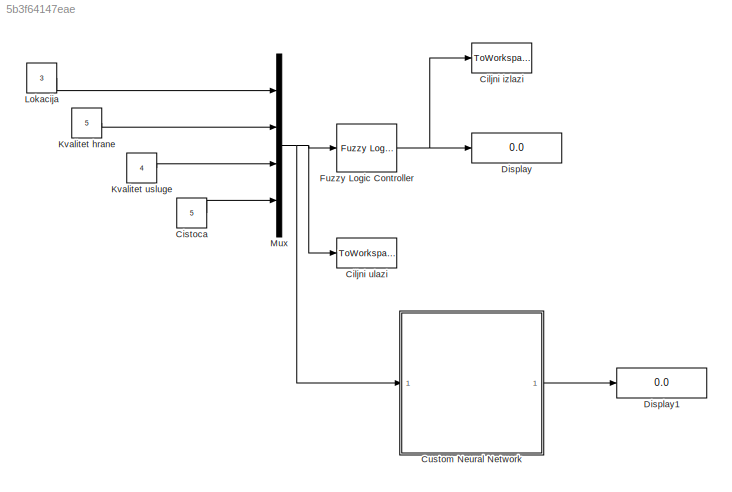
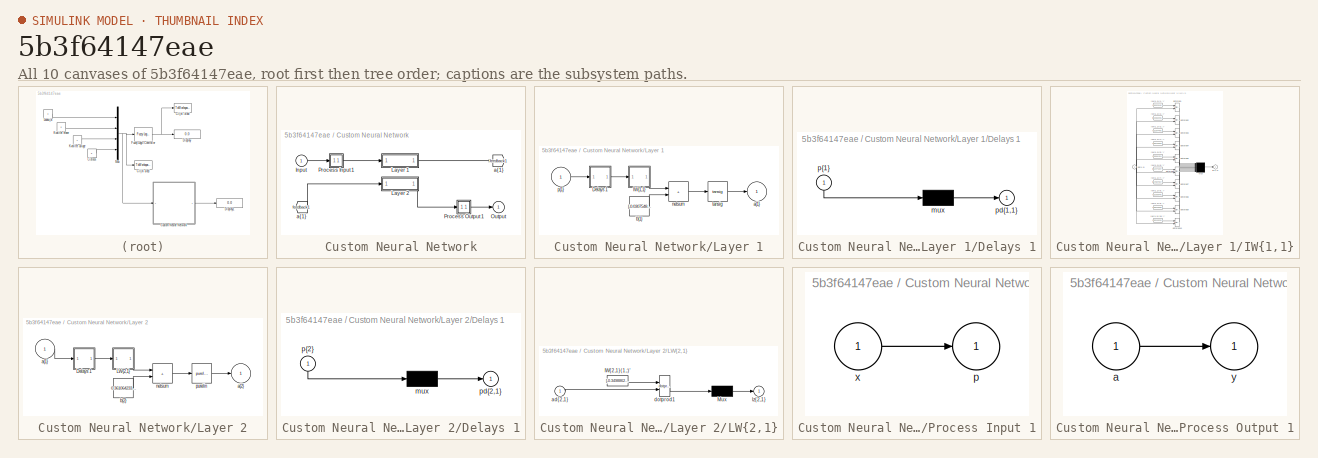
[diagram: thumbnail index - all 10 canvases of the model, root first then tree order]
MODEL slx_5b3f64147eae
KIND model
CONFIG AbsTol = auto
CONFIG EnableMultiTasking = on
CONFIG FixedStep = auto
CONFIG MaxStep = auto
CONFIG MinStep = auto
CONFIG RelTol = 1e-3
CONFIG SampleTimeConstraint = Unconstrained
CONFIG Solver = ode45
CONFIG SolverName = ode45
CONFIG StartTime = 0.0
CONFIG StopTime = 10.0
BLOCK [ToWorkspace] Ciljni izlazi
  MaxDataPoints = inf
  Ports = [1]
  SampleTime = -1
  VariableName = T
BLOCK [ToWorkspace] Ciljni ulazi
  MaxDataPoints = inf
  Ports = [1]
  SampleTime = -1
  VariableName = P
BLOCK [Constant] Cistoca
  Value = 5
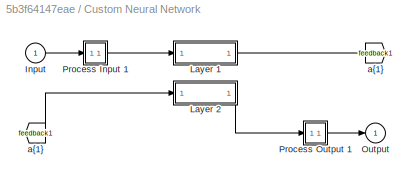
BLOCK [SubSystem] Custom Neural Network
  Ports = [1, 1]
  RequestExecContextInheritance = off
BLOCK [From] Custom Neural Network/ a{1} 
  GotoTag = feedback1
BLOCK [Inport] Custom Neural Network/Input
  PortDimensions = 4
  SampleTime = 0.1
BLOCK [SubSystem] Custom Neural Network/Layer 1
  Ports = [1, 1]
  RequestExecContextInheritance = off
BLOCK [SubSystem] Custom Neural Network/Layer 1/Delays 1
  Ports = [1, 1]
  RequestExecContextInheritance = off
BLOCK [Mux] Custom Neural Network/Layer 1/Delays 1/mux
  Inputs = 1
  Ports = [1, 1]
BLOCK [Outport] Custom Neural Network/Layer 1/Delays 1/pd{1,1}
BLOCK [Inport] Custom Neural Network/Layer 1/Delays 1/p{1}
  NameLocation = left
  PortDimensions = 4
  SampleTime = 0.1
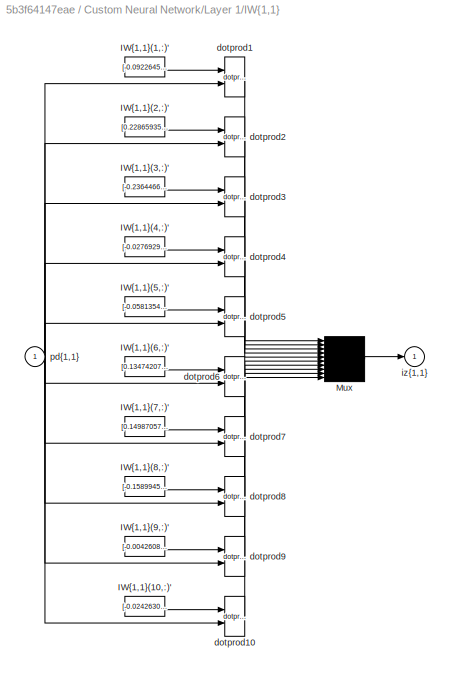
BLOCK [SubSystem] Custom Neural Network/Layer 1/IW{1,1}
  Ports = [1, 1]
  RequestExecContextInheritance = off
BLOCK [Constant] Custom Neural Network/Layer 1/IW{1,1}/IW{1,1}(1,:)'
  Value = [-0.092264564598057167;-0.1537742743300948;-0.1230194194640762;-0.1537742743300948]
BLOCK [Constant] Custom Neural Network/Layer 1/IW{1,1}/IW{1,1}(10,:)'
  Value = [-0.024263078394268014;-0.040438463990446719;-0.032350771192357373;-0.040438463990446719]
BLOCK [Constant] Custom Neural Network/Layer 1/IW{1,1}/IW{1,1}(2,:)'
  Value = [0.22865935438822055;0.38109892398036799;0.30487913918429366;0.38109892398036799]
BLOCK [Constant] Custom Neural Network/Layer 1/IW{1,1}/IW{1,1}(3,:)'
  Value = [-0.23644666900740802;-0.39407778167901392;-0.31526222534321074;-0.39407778167901392]
BLOCK [Constant] Custom Neural Network/Layer 1/IW{1,1}/IW{1,1}(4,:)'
  Value = [-0.027692954272011919;-0.046154923786686591;-0.036923939029349144;-0.046154923786686591]
BLOCK [Constant] Custom Neural Network/Layer 1/IW{1,1}/IW{1,1}(5,:)'
  Value = [-0.058135493638236384;-0.096892489397060466;-0.077513991517648595;-0.096892489397060466]
BLOCK [Constant] Custom Neural Network/Layer 1/IW{1,1}/IW{1,1}(6,:)'
  Value = [0.13474207955962739;0.22457013259937841;0.17965610607950258;0.22457013259937841]
BLOCK [Constant] Custom Neural Network/Layer 1/IW{1,1}/IW{1,1}(7,:)'
  Value = [0.14987057526266379;0.24978429210443956;0.19982743368355116;0.24978429210443956]
BLOCK [Constant] Custom Neural Network/Layer 1/IW{1,1}/IW{1,1}(8,:)'
  Value = [-0.15899453258741489;-0.26499088764569106;-0.21199271011655313;-0.26499088764569106]
BLOCK [Constant] Custom Neural Network/Layer 1/IW{1,1}/IW{1,1}(9,:)'
  Value = [-0.0042608896305555586;-0.0071014827175925688;-0.0056811861740740672;-0.0071014827175925688]
BLOCK [Mux] Custom Neural Network/Layer 1/IW{1,1}/Mux
  Inputs = 10
  Ports = [10, 1]
BLOCK [Reference] Custom Neural Network/Layer 1/IW{1,1}/dotprod1  REF=neural/Weight Functions/dotprod
  Ports = [2, 1]
  SourceBlock = neural/Weight Functions/dotprod
  SourceProductBaseCode = NN
  SourceType = DOTPROD
BLOCK [Reference] Custom Neural Network/Layer 1/IW{1,1}/dotprod10  REF=neural/Weight Functions/dotprod
  Ports = [2, 1]
  SourceBlock = neural/Weight Functions/dotprod
  SourceProductBaseCode = NN
  SourceType = DOTPROD
BLOCK [Reference] Custom Neural Network/Layer 1/IW{1,1}/dotprod2  REF=neural/Weight Functions/dotprod
  Ports = [2, 1]
  SourceBlock = neural/Weight Functions/dotprod
  SourceProductBaseCode = NN
  SourceType = DOTPROD
BLOCK [Reference] Custom Neural Network/Layer 1/IW{1,1}/dotprod3  REF=neural/Weight Functions/dotprod
  Ports = [2, 1]
  SourceBlock = neural/Weight Functions/dotprod
  SourceProductBaseCode = NN
  SourceType = DOTPROD
BLOCK [Reference] Custom Neural Network/Layer 1/IW{1,1}/dotprod4  REF=neural/Weight Functions/dotprod
  Ports = [2, 1]
  SourceBlock = neural/Weight Functions/dotprod
  SourceProductBaseCode = NN
  SourceType = DOTPROD
BLOCK [Reference] Custom Neural Network/Layer 1/IW{1,1}/dotprod5  REF=neural/Weight Functions/dotprod
  Ports = [2, 1]
  SourceBlock = neural/Weight Functions/dotprod
  SourceProductBaseCode = NN
  SourceType = DOTPROD
BLOCK [Reference] Custom Neural Network/Layer 1/IW{1,1}/dotprod6  REF=neural/Weight Functions/dotprod
  Ports = [2, 1]
  SourceBlock = neural/Weight Functions/dotprod
  SourceProductBaseCode = NN
  SourceType = DOTPROD
BLOCK [Reference] Custom Neural Network/Layer 1/IW{1,1}/dotprod7  REF=neural/Weight Functions/dotprod
  Ports = [2, 1]
  SourceBlock = neural/Weight Functions/dotprod
  SourceProductBaseCode = NN
  SourceType = DOTPROD
BLOCK [Reference] Custom Neural Network/Layer 1/IW{1,1}/dotprod8  REF=neural/Weight Functions/dotprod
  Ports = [2, 1]
  SourceBlock = neural/Weight Functions/dotprod
  SourceProductBaseCode = NN
  SourceType = DOTPROD
BLOCK [Reference] Custom Neural Network/Layer 1/IW{1,1}/dotprod9  REF=neural/Weight Functions/dotprod
  Ports = [2, 1]
  SourceBlock = neural/Weight Functions/dotprod
  SourceProductBaseCode = NN
  SourceType = DOTPROD
BLOCK [Outport] Custom Neural Network/Layer 1/IW{1,1}/iz{1,1}
BLOCK [Inport] Custom Neural Network/Layer 1/IW{1,1}/pd{1,1}
  PortDimensions = 4
  SampleTime = 0.1
BLOCK [Outport] Custom Neural Network/Layer 1/a{1}
  InitialOutput = [0;0;0;0;0;0;0;0;0;0]
BLOCK [Constant] Custom Neural Network/Layer 1/b{1}
  Value = [-0.03075485486601905;0.076219784796073414;-0.078815556335802686;-0.009230984757337286;-0.019378497879412149;0.044914026519875645;0.04995685842088779;-0.052998177529138282;-0.0014202965435185168;-0.0080876927980893434]
BLOCK [Sum] Custom Neural Network/Layer 1/netsum
  IconShape = rectangular
  InputSameDT = on
  Inputs = 2
  OutDataTypeStr = Inherit: Same as first input
  Ports = [2, 1]
  SaturateOnIntegerOverflow = on
BLOCK [Inport] Custom Neural Network/Layer 1/p{1}
  PortDimensions = 4
  SampleTime = 0.1
BLOCK [Reference] Custom Neural Network/Layer 1/tansig  REF=neural/Transfer Functions/tansig
  Ports = [1, 1]
  SourceBlock = neural/Transfer Functions/tansig
  SourceProductBaseCode = NN
  SourceType = TANSIG
BLOCK [SubSystem] Custom Neural Network/Layer 2
  Ports = [1, 1]
  RequestExecContextInheritance = off
BLOCK [SubSystem] Custom Neural Network/Layer 2/Delays 1
  Ports = [1, 1]
  RequestExecContextInheritance = off
BLOCK [Mux] Custom Neural Network/Layer 2/Delays 1/mux
  Inputs = 1
  Ports = [1, 1]
BLOCK [Outport] Custom Neural Network/Layer 2/Delays 1/pd{2,1}
BLOCK [Inport] Custom Neural Network/Layer 2/Delays 1/p{2}
  NameLocation = left
  PortDimensions = 10
  SampleTime = 0.1
BLOCK [SubSystem] Custom Neural Network/Layer 2/LW{2,1}
  Ports = [1, 1]
  RequestExecContextInheritance = off
BLOCK [Constant] Custom Neural Network/Layer 2/LW{2,1}/IW{2,1}(1,:)'
  Value = [-0.34988623446254169;0.88423513263677556;-0.91489877566121458;-0.11222536658070963;-0.22220870651453659;0.51485931202891999;0.57420683226751368;-0.61005579595106163;-0.018521568677897202;-0.099436932226076843]
BLOCK [Mux] Custom Neural Network/Layer 2/LW{2,1}/Mux
  Inputs = 1
  Ports = [1, 1]
BLOCK [Inport] Custom Neural Network/Layer 2/LW{2,1}/ad{2,1}
  PortDimensions = 10
  SampleTime = 0.1
BLOCK [Reference] Custom Neural Network/Layer 2/LW{2,1}/dotprod1  REF=neural/Weight Functions/dotprod
  Ports = [2, 1]
  SourceBlock = neural/Weight Functions/dotprod
  SourceProductBaseCode = NN
  SourceType = DOTPROD
BLOCK [Outport] Custom Neural Network/Layer 2/LW{2,1}/lz{2,1}
BLOCK [Inport] Custom Neural Network/Layer 2/a{1} 
  PortDimensions = 10
  SampleTime = 0.1
BLOCK [Outport] Custom Neural Network/Layer 2/a{2}
  InitialOutput = 0
BLOCK [Constant] Custom Neural Network/Layer 2/b{2}
  Value = 0.36106423327538617
BLOCK [Sum] Custom Neural Network/Layer 2/netsum
  IconShape = rectangular
  InputSameDT = on
  Inputs = 2
  OutDataTypeStr = Inherit: Same as first input
  Ports = [2, 1]
  SaturateOnIntegerOverflow = on
BLOCK [Reference] Custom Neural Network/Layer 2/purelin  REF=neural/Transfer Functions/purelin
  Ports = [1, 1]
  SourceBlock = neural/Transfer Functions/purelin
  SourceProductBaseCode = NN
  SourceType = PURELIN
BLOCK [Outport] Custom Neural Network/Output
  InitialOutput = 0
BLOCK [SubSystem] Custom Neural Network/Process Input 1
  Ports = [1, 1]
  RequestExecContextInheritance = off
BLOCK [Outport] Custom Neural Network/Process Input 1/p
  PortDimensions = 4
  SampleTime = 0.1
BLOCK [Inport] Custom Neural Network/Process Input 1/x
  PortDimensions = 4
  SampleTime = 0.1
BLOCK [SubSystem] Custom Neural Network/Process Output 1
  Ports = [1, 1]
  RequestExecContextInheritance = off
BLOCK [Inport] Custom Neural Network/Process Output 1/a
  PortDimensions = 1
  SampleTime = 0.1
BLOCK [Outport] Custom Neural Network/Process Output 1/y
  PortDimensions = 1
  SampleTime = 0.1
BLOCK [Goto] Custom Neural Network/a{1}
  GotoTag = feedback1
BLOCK [Display] Display
  Decimation = 1
  Ports = [1]
BLOCK [Display] Display1
  Decimation = 1
  Ports = [1]
BLOCK [Reference] Fuzzy Logic  Controller  REF=fuzblock/Fuzzy Logic   (lib defined in mdl_858b3b3e7478)
Controller
  Ports = [1, 1]
  SourceBlock = fuzblock/Fuzzy Logic \nController
  SourceProductBaseCode = FL
  SourceType = Fuzzy Inference System
BLOCK [Constant] Kvalitet hrane
  Value = 5
BLOCK [Constant] Kvalitet usluge
  Value = 4
BLOCK [Constant] Lokacija
  Value = 3
BLOCK [Mux] Mux
  DisplayOption = bar
  Ports = [4, 1]
LINE Cistoca:1 -> Mux:4
LINE Custom Neural Network/ a{1} :1 -> Custom Neural Network/Layer 2:1
LINE Custom Neural Network/Input:1 -> Custom Neural Network/Process Input 1:1
LINE Custom Neural Network/Layer 1/Delays 1/mux:1 -> Custom Neural Network/Layer 1/Delays 1/pd{1,1}:1
LINE Custom Neural Network/Layer 1/Delays 1/p{1}:1 -> Custom Neural Network/Layer 1/Delays 1/mux:1
LINE Custom Neural Network/Layer 1/Delays 1:1 -> Custom Neural Network/Layer 1/IW{1,1}:1
LINE Custom Neural Network/Layer 1/IW{1,1}/IW{1,1}(1,:)':1 -> Custom Neural Network/Layer 1/IW{1,1}/dotprod1:1
LINE Custom Neural Network/Layer 1/IW{1,1}/IW{1,1}(10,:)':1 -> Custom Neural Network/Layer 1/IW{1,1}/dotprod10:1
LINE Custom Neural Network/Layer 1/IW{1,1}/IW{1,1}(2,:)':1 -> Custom Neural Network/Layer 1/IW{1,1}/dotprod2:1
LINE Custom Neural Network/Layer 1/IW{1,1}/IW{1,1}(3,:)':1 -> Custom Neural Network/Layer 1/IW{1,1}/dotprod3:1
LINE Custom Neural Network/Layer 1/IW{1,1}/IW{1,1}(4,:)':1 -> Custom Neural Network/Layer 1/IW{1,1}/dotprod4:1
LINE Custom Neural Network/Layer 1/IW{1,1}/IW{1,1}(5,:)':1 -> Custom Neural Network/Layer 1/IW{1,1}/dotprod5:1
LINE Custom Neural Network/Layer 1/IW{1,1}/IW{1,1}(6,:)':1 -> Custom Neural Network/Layer 1/IW{1,1}/dotprod6:1
LINE Custom Neural Network/Layer 1/IW{1,1}/IW{1,1}(7,:)':1 -> Custom Neural Network/Layer 1/IW{1,1}/dotprod7:1
LINE Custom Neural Network/Layer 1/IW{1,1}/IW{1,1}(8,:)':1 -> Custom Neural Network/Layer 1/IW{1,1}/dotprod8:1
LINE Custom Neural Network/Layer 1/IW{1,1}/IW{1,1}(9,:)':1 -> Custom Neural Network/Layer 1/IW{1,1}/dotprod9:1
LINE Custom Neural Network/Layer 1/IW{1,1}/Mux:1 -> Custom Neural Network/Layer 1/IW{1,1}/iz{1,1}:1
LINE Custom Neural Network/Layer 1/IW{1,1}/dotprod10:1 -> Custom Neural Network/Layer 1/IW{1,1}/Mux:10
LINE Custom Neural Network/Layer 1/IW{1,1}/dotprod1:1 -> Custom Neural Network/Layer 1/IW{1,1}/Mux:1
LINE Custom Neural Network/Layer 1/IW{1,1}/dotprod2:1 -> Custom Neural Network/Layer 1/IW{1,1}/Mux:2
LINE Custom Neural Network/Layer 1/IW{1,1}/dotprod3:1 -> Custom Neural Network/Layer 1/IW{1,1}/Mux:3
LINE Custom Neural Network/Layer 1/IW{1,1}/dotprod4:1 -> Custom Neural Network/Layer 1/IW{1,1}/Mux:4
LINE Custom Neural Network/Layer 1/IW{1,1}/dotprod5:1 -> Custom Neural Network/Layer 1/IW{1,1}/Mux:5
LINE Custom Neural Network/Layer 1/IW{1,1}/dotprod6:1 -> Custom Neural Network/Layer 1/IW{1,1}/Mux:6
LINE Custom Neural Network/Layer 1/IW{1,1}/dotprod7:1 -> Custom Neural Network/Layer 1/IW{1,1}/Mux:7
LINE Custom Neural Network/Layer 1/IW{1,1}/dotprod8:1 -> Custom Neural Network/Layer 1/IW{1,1}/Mux:8
LINE Custom Neural Network/Layer 1/IW{1,1}/dotprod9:1 -> Custom Neural Network/Layer 1/IW{1,1}/Mux:9
NET Custom Neural Network/Layer 1/IW{1,1}/pd{1,1}:1 -> Custom Neural Network/Layer 1/IW{1,1}/dotprod10:2, Custom Neural Network/Layer 1/IW{1,1}/dotprod1:2, Custom Neural Network/Layer 1/IW{1,1}/dotprod2:2, Custom Neural Network/Layer 1/IW{1,1}/dotprod3:2, Custom Neural Network/Layer 1/IW{1,1}/dotprod4:2, Custom Neural Network/Layer 1/IW{1,1}/dotprod5:2, Custom Neural Network/Layer 1/IW{1,1}/dotprod6:2, Custom Neural Network/Layer 1/IW{1,1}/dotprod7:2, Custom Neural Network/Layer 1/IW{1,1}/dotprod8:2, Custom Neural Network/Layer 1/IW{1,1}/dotprod9:2
LINE Custom Neural Network/Layer 1/IW{1,1}:1 -> Custom Neural Network/Layer 1/netsum:1
LINE Custom Neural Network/Layer 1/b{1}:1 -> Custom Neural Network/Layer 1/netsum:2
LINE Custom Neural Network/Layer 1/netsum:1 -> Custom Neural Network/Layer 1/tansig:1
LINE Custom Neural Network/Layer 1/p{1}:1 -> Custom Neural Network/Layer 1/Delays 1:1
LINE Custom Neural Network/Layer 1/tansig:1 -> Custom Neural Network/Layer 1/a{1}:1
LINE Custom Neural Network/Layer 1:1 -> Custom Neural Network/a{1}:1
LINE Custom Neural Network/Layer 2/Delays 1/mux:1 -> Custom Neural Network/Layer 2/Delays 1/pd{2,1}:1
LINE Custom Neural Network/Layer 2/Delays 1/p{2}:1 -> Custom Neural Network/Layer 2/Delays 1/mux:1
LINE Custom Neural Network/Layer 2/Delays 1:1 -> Custom Neural Network/Layer 2/LW{2,1}:1
LINE Custom Neural Network/Layer 2/LW{2,1}/IW{2,1}(1,:)':1 -> Custom Neural Network/Layer 2/LW{2,1}/dotprod1:1
LINE Custom Neural Network/Layer 2/LW{2,1}/Mux:1 -> Custom Neural Network/Layer 2/LW{2,1}/lz{2,1}:1
LINE Custom Neural Network/Layer 2/LW{2,1}/ad{2,1}:1 -> Custom Neural Network/Layer 2/LW{2,1}/dotprod1:2
LINE Custom Neural Network/Layer 2/LW{2,1}/dotprod1:1 -> Custom Neural Network/Layer 2/LW{2,1}/Mux:1
LINE Custom Neural Network/Layer 2/LW{2,1}:1 -> Custom Neural Network/Layer 2/netsum:1
LINE Custom Neural Network/Layer 2/a{1} :1 -> Custom Neural Network/Layer 2/Delays 1:1
LINE Custom Neural Network/Layer 2/b{2}:1 -> Custom Neural Network/Layer 2/netsum:2
LINE Custom Neural Network/Layer 2/netsum:1 -> Custom Neural Network/Layer 2/purelin:1
LINE Custom Neural Network/Layer 2/purelin:1 -> Custom Neural Network/Layer 2/a{2}:1
LINE Custom Neural Network/Layer 2:1 -> Custom Neural Network/Process Output 1:1
LINE Custom Neural Network/Process Input 1/x:1 -> Custom Neural Network/Process Input 1/p:1
LINE Custom Neural Network/Process Input 1:1 -> Custom Neural Network/Layer 1:1
LINE Custom Neural Network/Process Output 1/a:1 -> Custom Neural Network/Process Output 1/y:1
LINE Custom Neural Network/Process Output 1:1 -> Custom Neural Network/Output:1
LINE Custom Neural Network:1 -> Display1:1
NET Fuzzy Logic  Controller:1 -> Ciljni izlazi:1, Display:1
LINE Kvalitet hrane:1 -> Mux:2
LINE Kvalitet usluge:1 -> Mux:3
LINE Lokacija:1 -> Mux:1
NET Mux:1 -> Ciljni ulazi:1, Custom Neural Network:1, Fuzzy Logic  Controller:1
note: NET lines group one-source signal fan-out (src -> all destinations, sorted); 1:1 wires keep LINE
